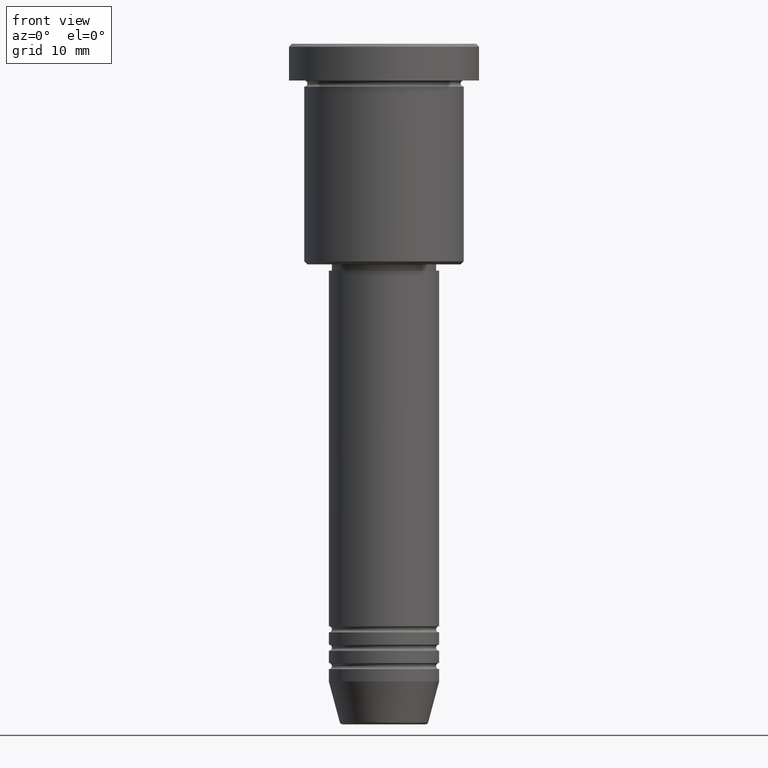
[diagram: clean part render]
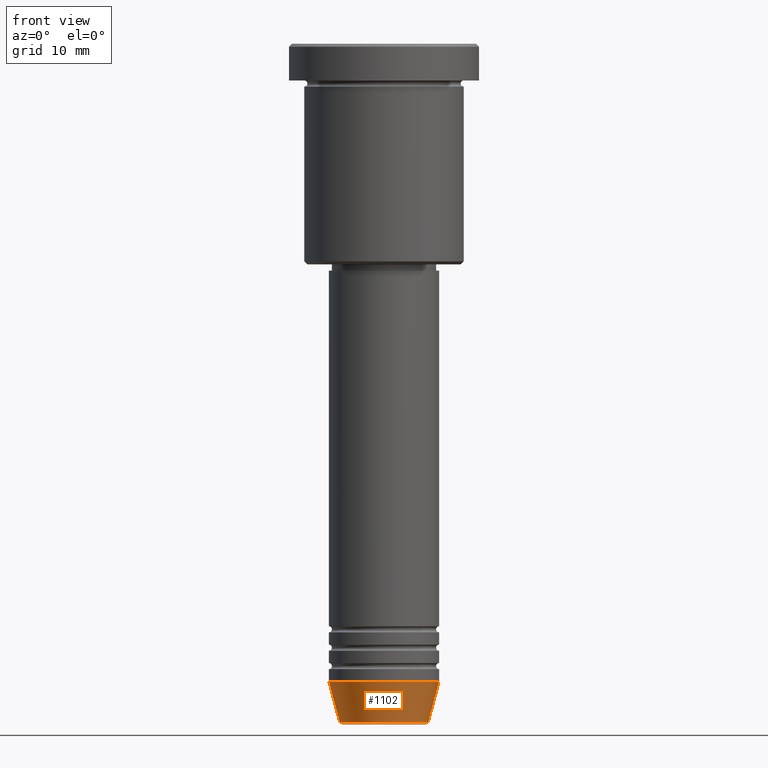
[diagram: same view with one face highlighted and labeled with its STEP entity id]
A machine part, front view. The second image highlights one B-rep face of the part: STEP entity #1102.
In plain terms, the highlighted conical surface has half-angle 15 deg.
Its self-contained STEP definition (entity closure, byte-faithful):
#7 = AXIS2_PLACEMENT_3D ( 'NONE', #874, #984, #528 ) ;
#45 = CARTESIAN_POINT ( 'NONE',  ( 7.223655072137197486, 0.000000000000000000, -110.6294095225512564 ) ) ;
#70 = DIRECTION ( 'NONE',  ( -0.000000000000000000, -0.000000000000000000, 1.000000000000000000 ) ) ;
#71 = DIRECTION ( 'NONE',  ( -0.2588190451025213501, 3.169619151431772337E-17, 0.9659258262890680902 ) ) ;
#109 = DIRECTION ( 'NONE',  ( 0.2588190451025213501, 0.000000000000000000, 0.9659258262890680902 ) ) ;
#130 = ORIENTED_EDGE ( 'NONE', *, *, #841, .T. ) ;
#177 = CARTESIAN_POINT ( 'NONE',  ( 9.000000000000000000, 0.000000000000000000, -104.0000000000000142 ) ) ;
#211 = CARTESIAN_POINT ( 'NONE',  ( 9.000000000000000000, 0.000000000000000000, -104.0000000000000142 ) ) ;
#348 = ORIENTED_EDGE ( 'NONE', *, *, #498, .T. ) ;
#386 = CARTESIAN_POINT ( 'NONE',  ( 0.000000000000000000, 0.000000000000000000, -110.6294095225512564 ) ) ;
#447 = CIRCLE ( 'NONE', #721, 9.000000000000000000 ) ;
#456 = VERTEX_POINT ( 'NONE', #954 ) ;
#488 = VECTOR ( 'NONE', #71, 1000.000000000000000 ) ;
#489 = VERTEX_POINT ( 'NONE', #45 ) ;
#498 = EDGE_CURVE ( 'NONE', #489, #857, #611, .T. ) ;
#528 = DIRECTION ( 'NONE',  ( 1.000000000000000000, 0.000000000000000000, 0.000000000000000000 ) ) ;
#542 = DIRECTION ( 'NONE',  ( 1.000000000000000000, 0.000000000000000000, 0.000000000000000000 ) ) ;
#563 = AXIS2_PLACEMENT_3D ( 'NONE', #386, #1011, #542 ) ;
#611 = LINE ( 'NONE', #211, #863 ) ;
#689 = DIRECTION ( 'NONE',  ( 1.000000000000000000, 0.000000000000000000, 0.000000000000000000 ) ) ;
#700 = CARTESIAN_POINT ( 'NONE',  ( 0.000000000000000000, 0.000000000000000000, -104.0000000000000142 ) ) ;
#706 = EDGE_CURVE ( 'NONE', #756, #456, #986, .T. ) ;
#716 = CARTESIAN_POINT ( 'NONE',  ( -9.000000000000000000, 1.102182119232617714E-15, -104.0000000000000142 ) ) ;
#718 = CARTESIAN_POINT ( 'NONE',  ( -7.223655072137198374, 9.934123627281771026E-16, -110.6294095225512564 ) ) ;
#721 = AXIS2_PLACEMENT_3D ( 'NONE', #700, #70, #689 ) ;
#722 = CONICAL_SURFACE ( 'NONE', #7, 9.000000000000000000, 0.2617993877991500740 ) ;
#756 = VERTEX_POINT ( 'NONE', #718 ) ;
#781 = FACE_OUTER_BOUND ( 'NONE', #839, .T. ) ;
#839 = EDGE_LOOP ( 'NONE', ( #981, #130, #348, #1112 ) ) ;
#841 = EDGE_CURVE ( 'NONE', #756, #489, #1028, .T. ) ;
#857 = VERTEX_POINT ( 'NONE', #177 ) ;
#863 = VECTOR ( 'NONE', #109, 1000.000000000000000 ) ;
#874 = CARTESIAN_POINT ( 'NONE',  ( 0.000000000000000000, 0.000000000000000000, -104.0000000000000142 ) ) ;
#954 = CARTESIAN_POINT ( 'NONE',  ( -9.000000000000000000, 1.102182119232617714E-15, -104.0000000000000142 ) ) ;
#981 = ORIENTED_EDGE ( 'NONE', *, *, #706, .F. ) ;
#984 = DIRECTION ( 'NONE',  ( -0.000000000000000000, -0.000000000000000000, 1.000000000000000000 ) ) ;
#986 = LINE ( 'NONE', #716, #488 ) ;
#1011 = DIRECTION ( 'NONE',  ( -0.000000000000000000, -0.000000000000000000, 1.000000000000000000 ) ) ;
#1028 = CIRCLE ( 'NONE', #563, 7.223655072137197486 ) ;
#1077 = EDGE_CURVE ( 'NONE', #456, #857, #447, .T. ) ;
#1102 = ADVANCED_FACE ( 'NONE', ( #781 ), #722, .T. ) ;
#1112 = ORIENTED_EDGE ( 'NONE', *, *, #1077, .F. ) ;